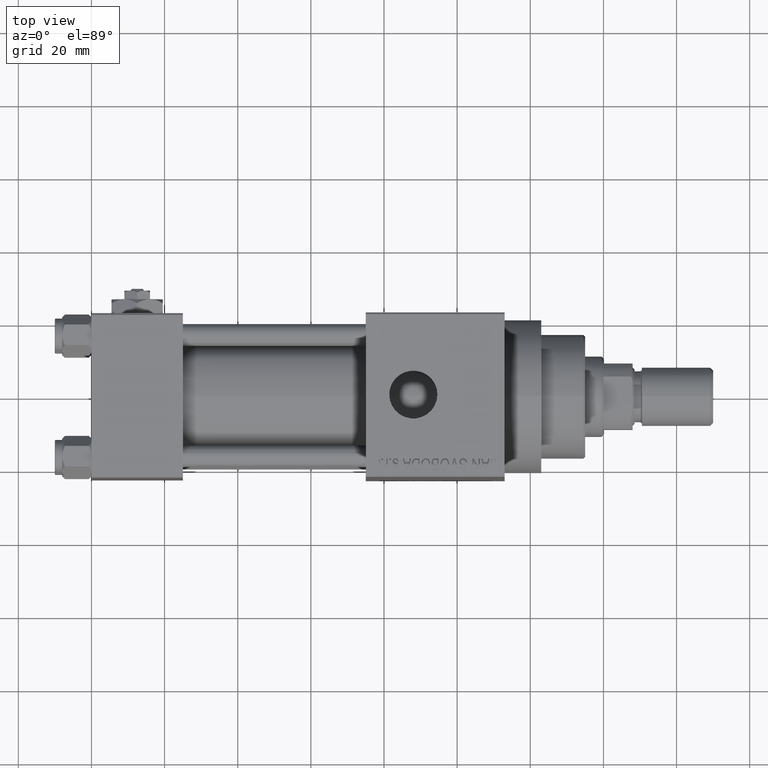
[diagram: clean part render]
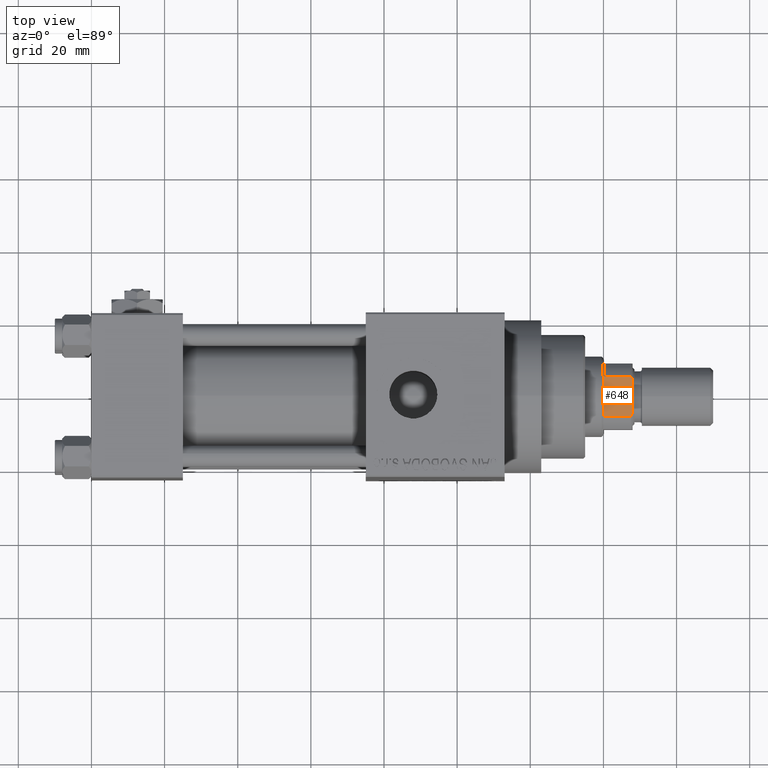
[diagram: same view with one face highlighted and labeled with its STEP entity id]
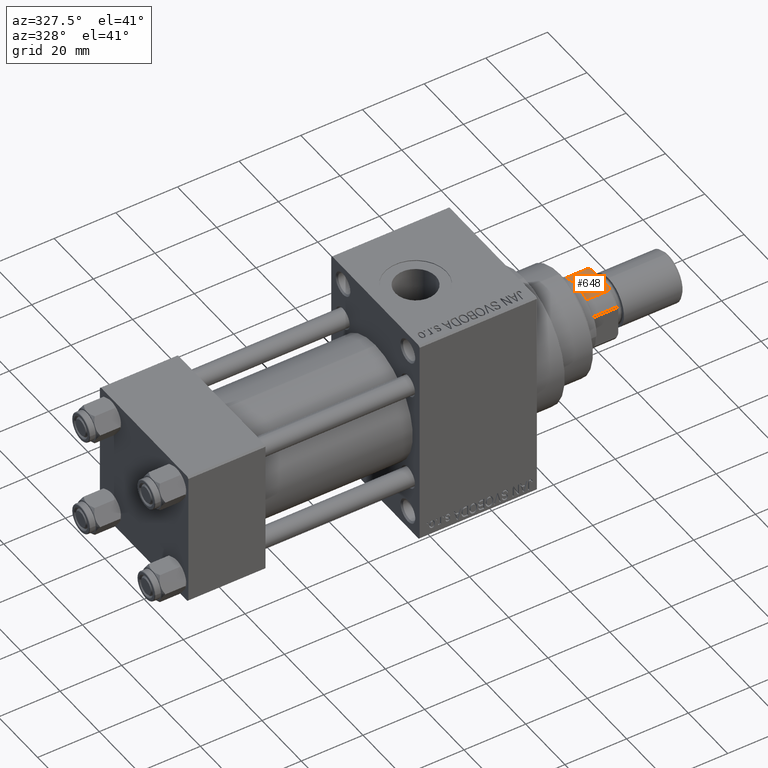
[diagram: same view with one face highlighted and labeled with its STEP entity id]
A machine part, top view. The second image highlights one B-rep face of the part: STEP entity #648.
A second angle (auxiliary view) of the same face is appended — the face is thin or edge-on in the first view.
In plain terms, the highlighted planar face has unit normal (0, 0, -1).
Its self-contained STEP definition (entity closure, byte-faithful):
#648 = ADVANCED_FACE ( 'NONE', ( #3486 ), #45106, .F. ) ;
#1922 = CARTESIAN_POINT ( 'NONE',  ( 5.063687070142448121, -8.999999999999998224, 122.6775166608139216 ) ) ;
#2101 = EDGE_CURVE ( 'NONE', #22624, #23712, #30833, .T. ) ;
#2383 = CARTESIAN_POINT ( 'NONE',  ( -5.408326913195988794, -8.999999999999998224, -0.001000000000001000089 ) ) ;
#2944 = EDGE_LOOP ( 'NONE', ( #35659, #18663, #12435, #7327, #45467, #9708 ) ) ;
#3486 = FACE_OUTER_BOUND ( 'NONE', #2944, .T. ) ;
#4221 = CARTESIAN_POINT ( 'NONE',  ( -9.000000000000001776, -9.000000000000001776, 123.0000000000000000 ) ) ;
#5520 = AXIS2_PLACEMENT_3D ( 'NONE', #4221, #34190, #7447 ) ;
#5561 = DIRECTION ( 'NONE',  ( 1.000000000000000000, 0.000000000000000000, 0.000000000000000000 ) ) ;
#7327 = ORIENTED_EDGE ( 'NONE', *, *, #32289, .T. ) ;
#7447 = DIRECTION ( 'NONE',  ( 0.000000000000000000, -0.000000000000000000, 1.000000000000000000 ) ) ;
#7765 = B_SPLINE_CURVE_WITH_KNOTS ( 'NONE', 3,
 ( #28763, #47834, #13894, #29009 ),
 .UNSPECIFIED., .F., .F.,
 ( 4, 4 ),
 ( 0.000000000000000000, 0.001162453897363199080 ),
 .UNSPECIFIED. ) ;
#8325 = EDGE_CURVE ( 'NONE', #36323, #23712, #17973, .T. ) ;
#9360 = CARTESIAN_POINT ( 'NONE',  ( 4.358898943540667759, -9.000000000000001776, 123.0000000000000000 ) ) ;
#9674 = VERTEX_POINT ( 'NONE', #14449 ) ;
#9708 = ORIENTED_EDGE ( 'NONE', *, *, #48294, .T. ) ;
#10437 = VECTOR ( 'NONE', #5561, 1000.000000000000000 ) ;
#10471 = CARTESIAN_POINT ( 'NONE',  ( 5.408326913195988794, -8.999999999999998224, -0.001000000000001000089 ) ) ;
#12435 = ORIENTED_EDGE ( 'NONE', *, *, #8325, .F. ) ;
#13894 = CARTESIAN_POINT ( 'NONE',  ( -5.063687070142449009, -9.000000000000001776, 122.6775166608139216 ) ) ;
#14449 = CARTESIAN_POINT ( 'NONE',  ( -5.408326913195988794, -8.999999999999998224, 122.5000000000000000 ) ) ;
#16469 = CARTESIAN_POINT ( 'NONE',  ( -9.000000000000001776, -9.000000000000001776, 115.0000000000000000 ) ) ;
#16691 = VECTOR ( 'NONE', #31643, 1000.000000000000000 ) ;
#17973 = LINE ( 'NONE', #33078, #20842 ) ;
#18663 = ORIENTED_EDGE ( 'NONE', *, *, #2101, .T. ) ;
#19549 = LINE ( 'NONE', #10471, #46455 ) ;
#20842 = VECTOR ( 'NONE', #20965, 1000.000000000000000 ) ;
#20965 = DIRECTION ( 'NONE',  ( 1.000000000000000000, 0.000000000000000000, 0.000000000000000000 ) ) ;
#22105 = CARTESIAN_POINT ( 'NONE',  ( -4.358898943540667759, -9.000000000000001776, 123.0000000000000000 ) ) ;
#22624 = VERTEX_POINT ( 'NONE', #42317 ) ;
#22920 = VERTEX_POINT ( 'NONE', #46637 ) ;
#23256 = DIRECTION ( 'NONE',  ( -0.000000000000000000, -0.000000000000000000, 1.000000000000000000 ) ) ;
#23712 = VERTEX_POINT ( 'NONE', #43306 ) ;
#24461 = CARTESIAN_POINT ( 'NONE',  ( 4.714305797500245809, -9.000000000000001776, 122.8450817439748448 ) ) ;
#28417 = LINE ( 'NONE', #2383, #16691 ) ;
#28627 = EDGE_CURVE ( 'NONE', #22920, #22624, #19549, .T. ) ;
#28763 = CARTESIAN_POINT ( 'NONE',  ( -4.358898943540667759, -9.000000000000001776, 123.0000000000000000 ) ) ;
#29009 = CARTESIAN_POINT ( 'NONE',  ( -5.408326913195988794, -8.999999999999998224, 122.5000000000000000 ) ) ;
#30833 = B_SPLINE_CURVE_WITH_KNOTS ( 'NONE', 3,
 ( #32380, #1922, #24461, #9360 ),
 .UNSPECIFIED., .F., .F.,
 ( 4, 4 ),
 ( 0.000000000000000000, 0.001162453897363199080 ),
 .UNSPECIFIED. ) ;
#31643 = DIRECTION ( 'NONE',  ( -0.000000000000000000, -0.000000000000000000, 1.000000000000000000 ) ) ;
#32289 = EDGE_CURVE ( 'NONE', #36323, #9674, #7765, .T. ) ;
#32380 = CARTESIAN_POINT ( 'NONE',  ( 5.408326913195988794, -8.999999999999998224, 122.5000000000000000 ) ) ;
#33078 = CARTESIAN_POINT ( 'NONE',  ( -9.000000000000001776, -9.000000000000001776, 123.0000000000000000 ) ) ;
#34190 = DIRECTION ( 'NONE',  ( 0.000000000000000000, 1.000000000000000000, 0.000000000000000000 ) ) ;
#35659 = ORIENTED_EDGE ( 'NONE', *, *, #28627, .T. ) ;
#36323 = VERTEX_POINT ( 'NONE', #22105 ) ;
#37285 = CARTESIAN_POINT ( 'NONE',  ( -5.408326913195988794, -8.999999999999998224, 115.0000000000000284 ) ) ;
#38766 = LINE ( 'NONE', #16469, #10437 ) ;
#42317 = CARTESIAN_POINT ( 'NONE',  ( 5.408326913195988794, -8.999999999999998224, 122.5000000000000000 ) ) ;
#43306 = CARTESIAN_POINT ( 'NONE',  ( 4.358898943540667759, -9.000000000000001776, 123.0000000000000000 ) ) ;
#43398 = EDGE_CURVE ( 'NONE', #45654, #9674, #28417, .T. ) ;
#45106 = PLANE ( 'NONE',  #5520 ) ;
#45467 = ORIENTED_EDGE ( 'NONE', *, *, #43398, .F. ) ;
#45654 = VERTEX_POINT ( 'NONE', #37285 ) ;
#46455 = VECTOR ( 'NONE', #23256, 1000.000000000000000 ) ;
#46637 = CARTESIAN_POINT ( 'NONE',  ( 5.408326913195988794, -8.999999999999998224, 115.0000000000000284 ) ) ;
#47834 = CARTESIAN_POINT ( 'NONE',  ( -4.714305797500247586, -9.000000000000001776, 122.8450817439748448 ) ) ;
#48294 = EDGE_CURVE ( 'NONE', #45654, #22920, #38766, .T. ) ;